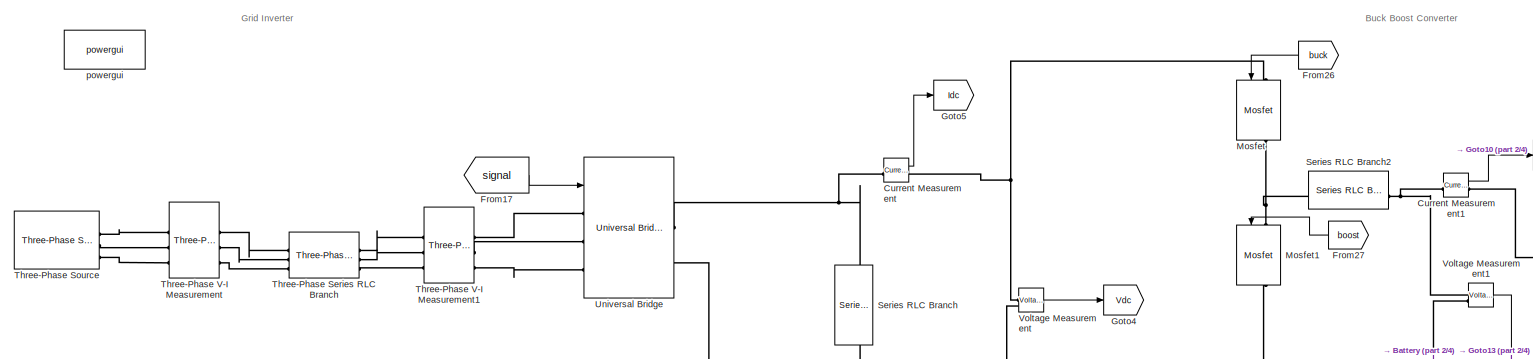
[diagram: root canvas - part 1/4, top left region]
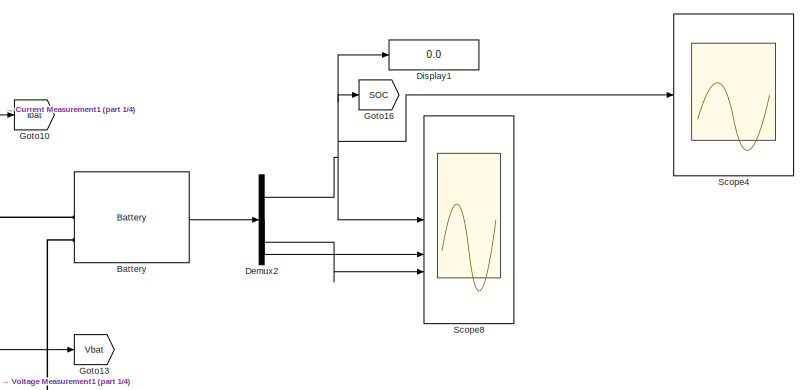
[diagram: root canvas - part 2/4, top right region]
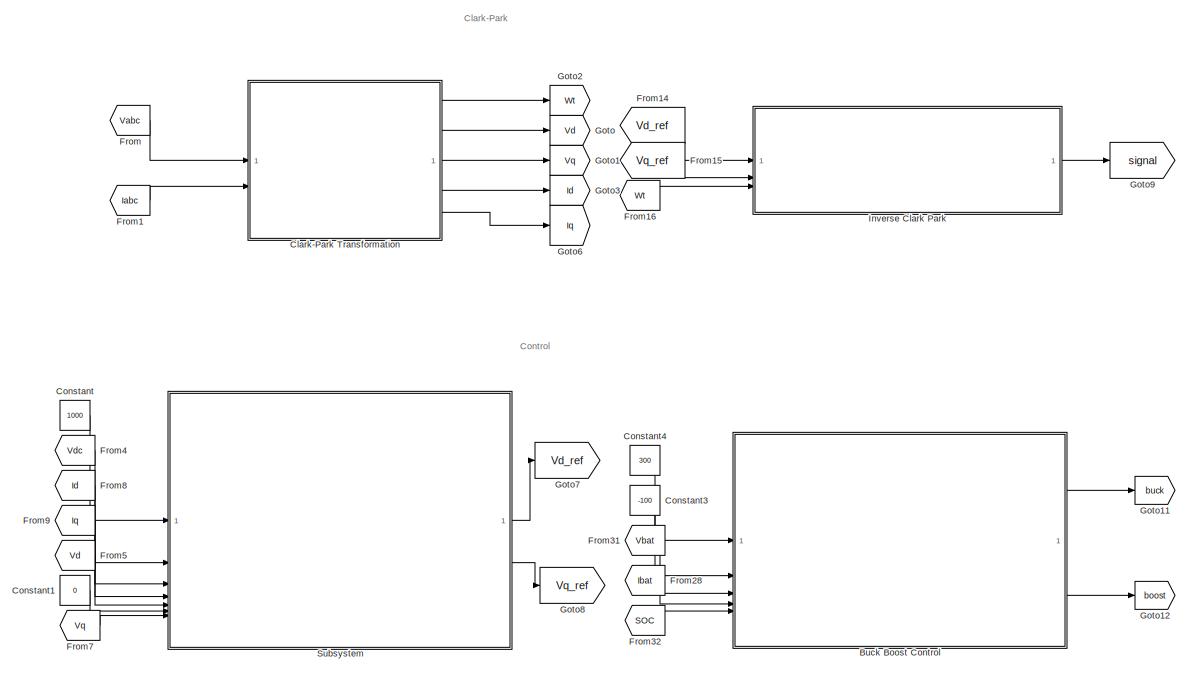
[diagram: root canvas - part 3/4, bottom left region]
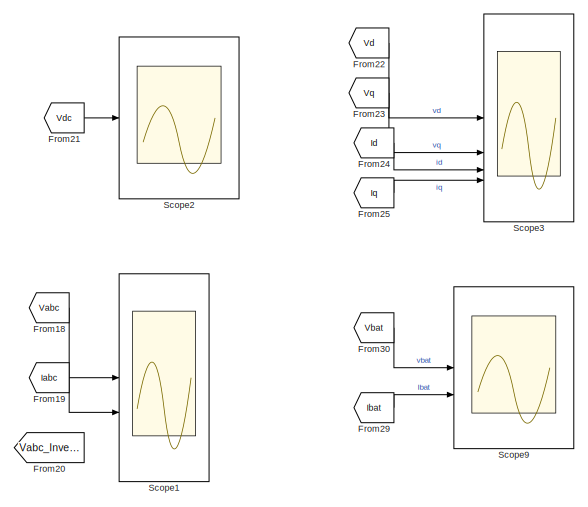
[diagram: root canvas - part 4/4, bottom right region]
MODEL slx_ea858002b065
KIND model
CONFIG AbsTol = auto
CONFIG EnableMultiTasking = off
CONFIG FixedStep = auto
CONFIG InitFcn = L=5e-3;
CONFIG MaxStep = 1e-5
CONFIG MinStep = auto
CONFIG RelTol = 1e-3
CONFIG SampleTimeConstraint = Unconstrained
CONFIG SolverName = ode23tb
CONFIG StartTime = 0.0
CONFIG StopTime = 1.4
BLOCK [Reference] Battery  REF=spsBatteryLib/Battery
  LibrarySourceBlock = sps_lib/Sources/Battery
  NameLocation = top
  SourceBlock = spsBatteryLib/Battery
  SourceType = Battery
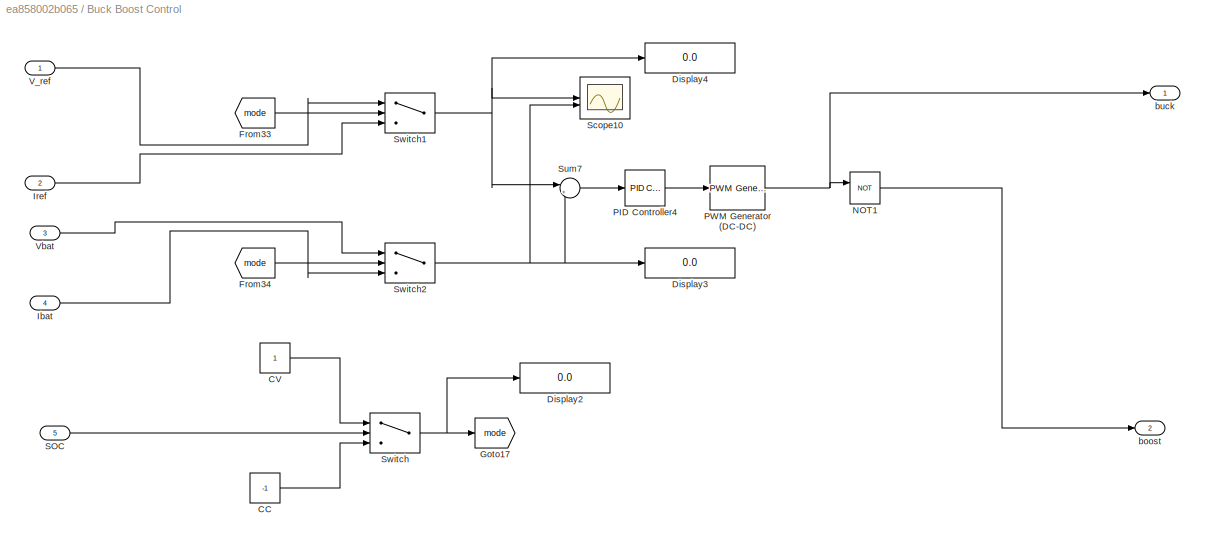
BLOCK [SubSystem] Buck Boost Control
BLOCK [Constant] Buck Boost Control/CC
  Value = -1
BLOCK [Constant] Buck Boost Control/CV
BLOCK [Display] Buck Boost Control/Display2
  Decimation = 1
BLOCK [Display] Buck Boost Control/Display3
  Decimation = 1
BLOCK [Display] Buck Boost Control/Display4
  Decimation = 1
BLOCK [From] Buck Boost Control/From33
  GotoTag = mode
BLOCK [From] Buck Boost Control/From34
  GotoTag = mode
BLOCK [Goto] Buck Boost Control/Goto17
  GotoTag = mode
BLOCK [Inport] Buck Boost Control/Ibat
  Port = 4
BLOCK [Inport] Buck Boost Control/Iref
  Port = 2
BLOCK [Logic] Buck Boost Control/NOT1
  AllPortsSameDT = off
  IconShape = distinctive
  Operator = NOT
  OutDataTypeStr = boolean
BLOCK [Reference] Buck Boost Control/PID Controller4  REF=slpidlib/PID Controller
  LibrarySourceBlock = simulink/Continuous/PID Controller
  SourceBlock = slpidlib/PID Controller
  SourceType = PID 1dof
BLOCK [Reference] Buck Boost Control/PWM Generator (DC-DC)  REF=spsPWMGeneratorDCDCLib/PWM Generator
(DC-DC)
  LibrarySourceBlock = sps_lib/Power Electronics/Power Electronics Control/PWM Generator\n(DC-DC)
  SourceBlock = spsPWMGeneratorDCDCLib/PWM Generator\n(DC-DC)
  SourceType = PWM Generator (DC-DC)
BLOCK [Inport] Buck Boost Control/SOC
  Port = 5
BLOCK [Scope] Buck Boost Control/Scope10
  Floating = off
  NumInputPorts = 2
  ScopeSpecificationString = Simulink.scopes.TimeScopeBlockCfg('CurrentConfiguration', extmgr.ConfigurationSet(extmgr.Configuration('Core','General UI',true),extmgr.Configuration('Core','Source UI',true),extmgr.Configuration('Sources','WiredSimulink',true,'DataLoggingVariableName','ScopeData1'),extmgr.Configuration('Visuals','Time Domain',true,'SerializedDisplays',{struct('MinYLimReal','-76.2053','MaxYLimReal','176.26756','YL...<+1438ch>
BLOCK [Sum] Buck Boost Control/Sum7
  Inputs = |+-
BLOCK [Switch] Buck Boost Control/Switch
  InputSameDT = off
  SaturateOnIntegerOverflow = off
  Threshold = 80
BLOCK [Switch] Buck Boost Control/Switch1
  InputSameDT = off
  SaturateOnIntegerOverflow = off
BLOCK [Switch] Buck Boost Control/Switch2
  InputSameDT = off
  SaturateOnIntegerOverflow = off
BLOCK [Inport] Buck Boost Control/V_ref
BLOCK [Inport] Buck Boost Control/Vbat
  Port = 3
BLOCK [Outport] Buck Boost Control/boost
  Port = 2
BLOCK [Outport] Buck Boost Control/buck
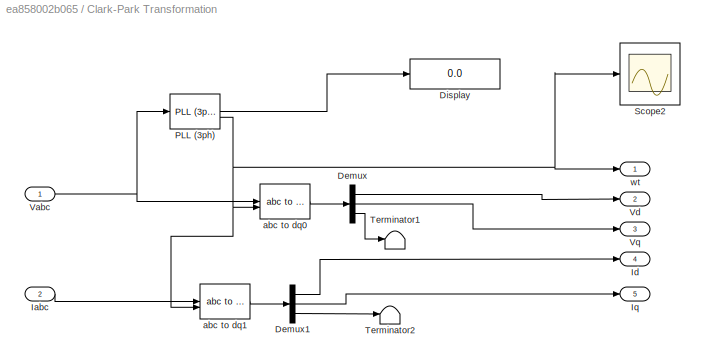
BLOCK [SubSystem] Clark-Park Transformation
BLOCK [Demux] Clark-Park Transformation/Demux
  Outputs = 3
BLOCK [Demux] Clark-Park Transformation/Demux1
  Outputs = 3
BLOCK [Display] Clark-Park Transformation/Display
  Decimation = 1
BLOCK [Inport] Clark-Park Transformation/Iabc
  Port = 2
BLOCK [Outport] Clark-Park Transformation/Id
  Port = 4
BLOCK [Outport] Clark-Park Transformation/Iq
  Port = 5
BLOCK [Reference] Clark-Park Transformation/PLL (3ph)  REF=spsPLL3phLib/PLL
(3ph)
  LibrarySourceBlock = sps_lib/Control/PLL\n(3ph)
  SourceBlock = spsPLL3phLib/PLL\n(3ph)
  SourceType = PLL (3ph)
BLOCK [Scope] Clark-Park Transformation/Scope2
  Floating = off
  NumInputPorts = 1
  ScopeSpecificationString = Simulink.scopes.TimeScopeBlockCfg('CurrentConfiguration', extmgr.ConfigurationSet(extmgr.Configuration('Core','General UI',true,'FigureColor',[1 1 1]),extmgr.Configuration('Core','Source UI',true),extmgr.Configuration('Sources','WiredSimulink',true,'DataLoggingVariableName','ScopeData2'),extmgr.Configuration('Visuals','Time Domain',true,'SerializedDisplays',{struct('MinYLimReal','-0.7854','MaxYLim...<+2475ch>
BLOCK [Terminator] Clark-Park Transformation/Terminator1
BLOCK [Terminator] Clark-Park Transformation/Terminator2
BLOCK [Inport] Clark-Park Transformation/Vabc
BLOCK [Outport] Clark-Park Transformation/Vd
  Port = 2
BLOCK [Outport] Clark-Park Transformation/Vq
  Port = 3
BLOCK [Reference] Clark-Park Transformation/abc to dq0  REF=spsabctodq0Lib/abc to dq0
  LibrarySourceBlock = sps_lib/Control/abc to dq0
  SourceBlock = spsabctodq0Lib/abc to dq0
  SourceType = abc to dq0 Transformation
BLOCK [Reference] Clark-Park Transformation/abc to dq1  REF=spsabctodq0Lib/abc to dq0
  LibrarySourceBlock = sps_lib/Control/abc to dq0
  SourceBlock = spsabctodq0Lib/abc to dq0
  SourceType = abc to dq0 Transformation
BLOCK [Outport] Clark-Park Transformation/wt
BLOCK [Constant] Constant
  Value = 1000
BLOCK [Constant] Constant1
  NameLocation = right
  Value = 0
BLOCK [Constant] Constant3
  Value = -100
BLOCK [Constant] Constant4
  Value = 300
BLOCK [Reference] Current Measurement  REF=spsCurrentMeasurementLib/Current Measurement
  LibrarySourceBlock = sps_lib/Sensors and Measurements/Current Measurement
  SourceBlock = spsCurrentMeasurementLib/Current Measurement
  SourceType = Current Measurement
  UserDataPersistent = on
BLOCK [Reference] Current Measurement1  REF=spsCurrentMeasurementLib/Current Measurement
  LibrarySourceBlock = sps_lib/Sensors and Measurements/Current Measurement
  SourceBlock = spsCurrentMeasurementLib/Current Measurement
  SourceType = Current Measurement
  UserDataPersistent = on
BLOCK [Demux] Demux2
  Outputs = 3
BLOCK [Display] Display1
  Decimation = 1
BLOCK [From] From
  GotoTag = Vabc
  TagVisibility = global
BLOCK [From] From1
  GotoTag = Iabc
  TagVisibility = global
BLOCK [From] From14
  GotoTag = Vd_ref
BLOCK [From] From15
  GotoTag = Vq_ref
BLOCK [From] From16
  GotoTag = Wt
BLOCK [From] From17
  GotoTag = signal
BLOCK [From] From18
  GotoTag = Vabc
  TagVisibility = global
BLOCK [From] From19
  GotoTag = Iabc
  TagVisibility = global
BLOCK [From] From20
  GotoTag = Vabc_Inverter
  TagVisibility = global
BLOCK [From] From21
  GotoTag = Vdc
BLOCK [From] From22
  GotoTag = Vd
BLOCK [From] From23
  GotoTag = Vq
BLOCK [From] From24
  GotoTag = Id
BLOCK [From] From25
  GotoTag = Iq
BLOCK [From] From26
  GotoTag = buck
  NameLocation = top
BLOCK [From] From27
  GotoTag = boost
  NameLocation = top
BLOCK [From] From28
  GotoTag = Ibat
BLOCK [From] From29
  GotoTag = Ibat
BLOCK [From] From30
  GotoTag = Vbat
BLOCK [From] From31
  GotoTag = Vbat
BLOCK [From] From32
  GotoTag = SOC
BLOCK [From] From4
  GotoTag = Vdc
BLOCK [From] From5
  GotoTag = Vd
BLOCK [From] From7
  GotoTag = Vq
BLOCK [From] From8
  GotoTag = Id
BLOCK [From] From9
  GotoTag = Iq
BLOCK [Goto] Goto
  GotoTag = Vd
BLOCK [Goto] Goto1
  GotoTag = Vq
BLOCK [Goto] Goto10
  GotoTag = Ibat
BLOCK [Goto] Goto11
  GotoTag = buck
  NameLocation = top
BLOCK [Goto] Goto12
  GotoTag = boost
  NameLocation = top
BLOCK [Goto] Goto13
  GotoTag = Vbat
BLOCK [Goto] Goto16
  GotoTag = SOC
BLOCK [Goto] Goto2
  GotoTag = Wt
BLOCK [Goto] Goto3
  GotoTag = Id
BLOCK [Goto] Goto4
  GotoTag = Vdc
BLOCK [Goto] Goto5
  GotoTag = Idc
BLOCK [Goto] Goto6
  GotoTag = Iq
BLOCK [Goto] Goto7
  GotoTag = Vd_ref
BLOCK [Goto] Goto8
  GotoTag = Vq_ref
BLOCK [Goto] Goto9
  GotoTag = signal
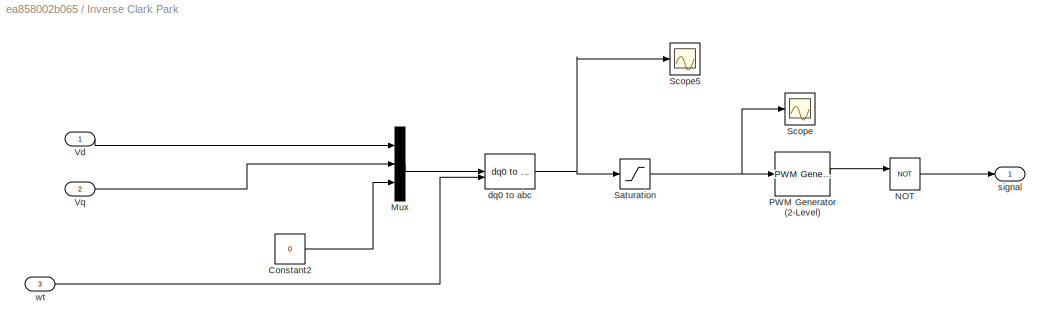
BLOCK [SubSystem] Inverse Clark Park
BLOCK [Constant] Inverse Clark Park/Constant2
  Value = 0
BLOCK [Mux] Inverse Clark Park/Mux
  DisplayOption = bar
  Inputs = 3
BLOCK [Logic] Inverse Clark Park/NOT
  AllPortsSameDT = off
  IconShape = distinctive
  Operator = NOT
  OutDataTypeStr = boolean
BLOCK [Reference] Inverse Clark Park/PWM Generator (2-Level)  REF=spsPWMGenerator2LevelLib/PWM Generator
(2-Level)
  LibrarySourceBlock = sps_lib/Power Electronics/Power Electronics Control/PWM Generator\n(2-Level)
  SourceBlock = spsPWMGenerator2LevelLib/PWM Generator\n(2-Level)
  SourceType = PWM Generator (2-Level)
BLOCK [Saturate] Inverse Clark Park/Saturation
  LowerLimit = -2
  UpperLimit = 2
BLOCK [Scope] Inverse Clark Park/Scope
  Floating = off
  NumInputPorts = 1
  ScopeSpecificationString = Simulink.scopes.TimeScopeBlockCfg('CurrentConfiguration', extmgr.ConfigurationSet(extmgr.Configuration('Core','General UI',true,'FigureColor',[1 1 1]),extmgr.Configuration('Core','Source UI',true),extmgr.Configuration('Sources','WiredSimulink',true),extmgr.Configuration('Visuals','Time Domain',true,'SerializedDisplays',{struct('MinYLimReal','-2.5','MaxYLimReal','2.5','YLabelReal','','MinYLimMag','...<+2252ch>
BLOCK [Scope] Inverse Clark Park/Scope5
  Floating = off
  NumInputPorts = 1
  ScopeSpecificationString = Simulink.scopes.TimeScopeBlockCfg('CurrentConfiguration', extmgr.ConfigurationSet(extmgr.Configuration('Core','General UI',true,'FigureColor',[1 1 1]),extmgr.Configuration('Core','Source UI',true),extmgr.Configuration('Sources','WiredSimulink',true,'DataLoggingVariableName','ScopeData5'),extmgr.Configuration('Visuals','Time Domain',true,'SerializedDisplays',{struct('MinYLimReal','-580.09013','MaxY...<+2329ch>
BLOCK [Inport] Inverse Clark Park/Vd
BLOCK [Inport] Inverse Clark Park/Vq
  Port = 2
BLOCK [Reference] Inverse Clark Park/dq0 to abc  REF=spsdq0toabcLib/dq0 to abc
  LibrarySourceBlock = sps_lib/Control/dq0 to abc
  SourceBlock = spsdq0toabcLib/dq0 to abc
  SourceType = dq0 to abc Transformation
BLOCK [Outport] Inverse Clark Park/signal
BLOCK [Inport] Inverse Clark Park/wt
  Port = 3
BLOCK [Reference] Mosfet  REF=spsMosfetLib/Mosfet
  LibrarySourceBlock = sps_lib/Power Electronics/Mosfet
  NameLocation = left
  SourceBlock = spsMosfetLib/Mosfet
  SourceType = Mosfet
BLOCK [Reference] Mosfet1  REF=spsMosfetLib/Mosfet
  LibrarySourceBlock = sps_lib/Power Electronics/Mosfet
  NameLocation = left
  SourceBlock = spsMosfetLib/Mosfet
  SourceType = Mosfet
BLOCK [Scope] Scope1
  Floating = off
  NumInputPorts = 3
  ScopeSpecificationString = Simulink.scopes.TimeScopeBlockCfg('CurrentConfiguration', extmgr.ConfigurationSet(extmgr.Configuration('Core','General UI',true,'FigureColor',[1 1 1]),extmgr.Configuration('Core','Source UI',true),extmgr.Configuration('Sources','WiredSimulink',true,'DataLoggingVariableName','ScopeData1'),extmgr.Configuration('Visuals','Time Domain',true,'SerializedDisplays',{struct('MinYLimReal','-387.83588','MaxY...<+3596ch>
BLOCK [Scope] Scope2
  Floating = off
  NumInputPorts = 1
  ScopeSpecificationString = Simulink.scopes.TimeScopeBlockCfg('CurrentConfiguration', extmgr.ConfigurationSet(extmgr.Configuration('Core','General UI',true,'FigureColor',[1 1 1]),extmgr.Configuration('Core','Source UI',true),extmgr.Configuration('Sources','WiredSimulink',true,'DataLoggingVariableName','ScopeData1'),extmgr.Configuration('Visuals','Time Domain',true,'SerializedDisplays',{struct('MinYLimReal','774.53824','MaxYL...<+2503ch>
BLOCK [Scope] Scope3
  Floating = off
  NumInputPorts = 4
  ScopeSpecificationString = Simulink.scopes.TimeScopeBlockCfg('CurrentConfiguration', extmgr.ConfigurationSet(extmgr.Configuration('Core','General UI',true,'FigureColor',[1 1 1]),extmgr.Configuration('Core','Source UI',true),extmgr.Configuration('Sources','WiredSimulink',true,'DataLoggingVariableName','ScopeData1'),extmgr.Configuration('Visuals','Time Domain',true,'SerializedDisplays',{struct('MinYLimReal','310.26698','MaxYL...<+4992ch>
BLOCK [Scope] Scope4
  Floating = off
  NumInputPorts = 1
  ScopeSpecificationString = Simulink.scopes.TimeScopeBlockCfg('CurrentConfiguration', extmgr.ConfigurationSet(extmgr.Configuration('Core','General UI',true,'FigureColor',[1 1 1]),extmgr.Configuration('Core','Source UI',true),extmgr.Configuration('Sources','WiredSimulink',true,'DataLoggingVariableName','ScopeData1'),extmgr.Configuration('Visuals','Time Domain',true,'SerializedDisplays',{struct('MinYLimReal','79.70842','MaxYLi...<+2480ch>
BLOCK [Scope] Scope8
  Floating = off
  NumInputPorts = 3
  ScopeSpecificationString = Simulink.scopes.TimeScopeBlockCfg('CurrentConfiguration', extmgr.ConfigurationSet(extmgr.Configuration('Core','General UI',true,'FigureColor',[1 1 1]),extmgr.Configuration('Core','Source UI',true),extmgr.Configuration('Sources','WiredSimulink',true,'DataLoggingVariableName','ScopeData2'),extmgr.Configuration('Visuals','Time Domain',true,'SerializedDisplays',{struct('MinYLimReal','79.91629','MaxYLi...<+4250ch>
BLOCK [Scope] Scope9
  Floating = off
  NumInputPorts = 2
  ScopeSpecificationString = Simulink.scopes.TimeScopeBlockCfg('CurrentConfiguration', extmgr.ConfigurationSet(extmgr.Configuration('Core','General UI',true,'FigureColor',[1 1 1]),extmgr.Configuration('Core','Source UI',true),extmgr.Configuration('Sources','WiredSimulink',true,'DataLoggingVariableName','ScopeData3'),extmgr.Configuration('Visuals','Time Domain',true,'SerializedDisplays',{struct('MinYLimReal','288.62828','MaxYL...<+3165ch>
BLOCK [Reference] Series RLC Branch  REF=spsSeriesRLCBranchLib/Series RLC Branch
  LibrarySourceBlock = sps_lib/Passives/Series RLC Branch
  NameLocation = left
  SourceBlock = spsSeriesRLCBranchLib/Series RLC Branch
  SourceType = Series RLC Branch
BLOCK [Reference] Series RLC Branch2  REF=spsSeriesRLCBranchLib/Series RLC Branch
  LibrarySourceBlock = sps_lib/Passives/Series RLC Branch
  SourceBlock = spsSeriesRLCBranchLib/Series RLC Branch
  SourceType = Series RLC Branch
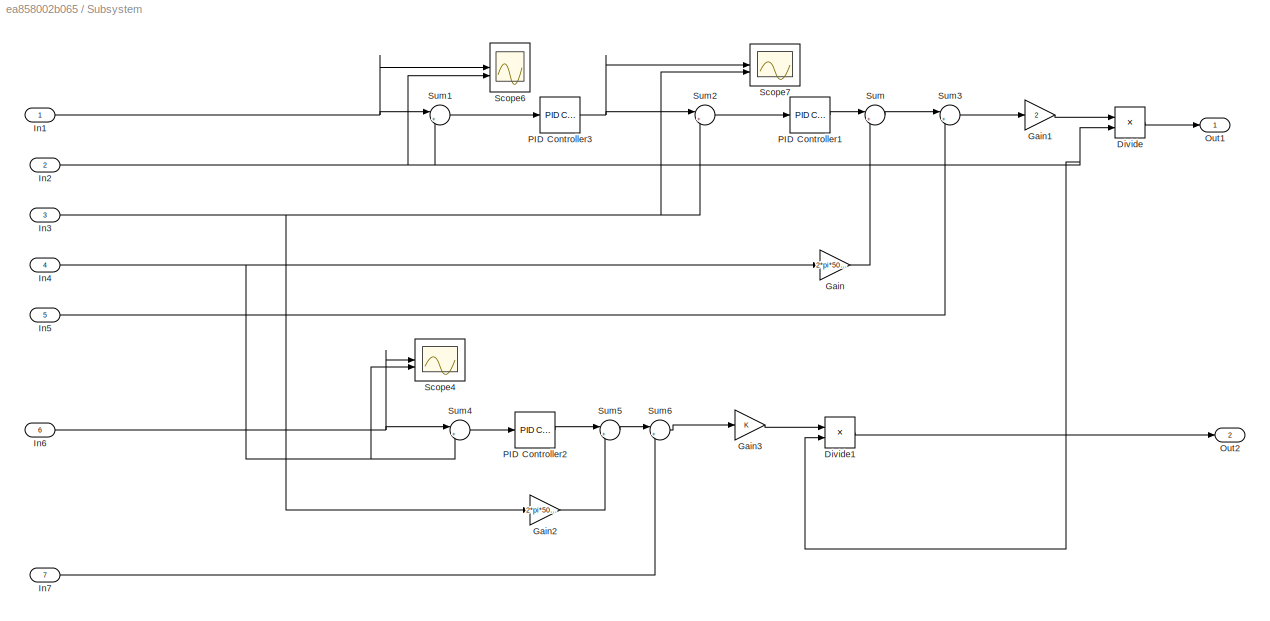
BLOCK [SubSystem] Subsystem
BLOCK [Product] Subsystem/Divide
  Inputs = */
BLOCK [Product] Subsystem/Divide1
  Inputs = */
BLOCK [Gain] Subsystem/Gain
  Gain = 2*pi*50*L
BLOCK [Gain] Subsystem/Gain1
  Gain = 2
BLOCK [Gain] Subsystem/Gain2
  Gain = 2*pi*50*L
BLOCK [Gain] Subsystem/Gain3
BLOCK [Inport] Subsystem/In1
BLOCK [Inport] Subsystem/In2
  Port = 2
BLOCK [Inport] Subsystem/In3
  Port = 3
BLOCK [Inport] Subsystem/In4
  Port = 4
BLOCK [Inport] Subsystem/In5
  Port = 5
BLOCK [Inport] Subsystem/In6
  Port = 6
BLOCK [Inport] Subsystem/In7
  Port = 7
BLOCK [Outport] Subsystem/Out1
BLOCK [Outport] Subsystem/Out2
  Port = 2
BLOCK [Reference] Subsystem/PID Controller1  REF=slpidlib/PID Controller
  LibrarySourceBlock = simulink/Continuous/PID Controller
  SourceBlock = slpidlib/PID Controller
  SourceType = PID 1dof
BLOCK [Reference] Subsystem/PID Controller2  REF=slpidlib/PID Controller
  LibrarySourceBlock = simulink/Continuous/PID Controller
  SourceBlock = slpidlib/PID Controller
  SourceType = PID 1dof
BLOCK [Reference] Subsystem/PID Controller3  REF=slpidlib/PID Controller
  LibrarySourceBlock = simulink/Continuous/PID Controller
  SourceBlock = slpidlib/PID Controller
  SourceType = PID 1dof
BLOCK [Scope] Subsystem/Scope4
  Floating = off
  NumInputPorts = 2
  ScopeSpecificationString = Simulink.scopes.TimeScopeBlockCfg('CurrentConfiguration', extmgr.ConfigurationSet(extmgr.Configuration('Core','General UI',true),extmgr.Configuration('Core','Source UI',true),extmgr.Configuration('Sources','WiredSimulink',true,'DataLoggingVariableName','ScopeData4'),extmgr.Configuration('Visuals','Time Domain',true,'SerializedDisplays',{struct('MinYLimReal','-4.05159','MaxYLimReal','9.77605','YLab...<+1423ch>
BLOCK [Scope] Subsystem/Scope6
  Floating = off
  NumInputPorts = 2
  ScopeSpecificationString = Simulink.scopes.TimeScopeBlockCfg('CurrentConfiguration', extmgr.ConfigurationSet(extmgr.Configuration('Core','General UI',true),extmgr.Configuration('Core','Source UI',true),extmgr.Configuration('Sources','WiredSimulink',true,'DataLoggingVariableName','ScopeData6'),extmgr.Configuration('Visuals','Time Domain',true,'SerializedDisplays',{struct('MinYLimReal','960.39112','MaxYLimReal','1175.68547','...<+1582ch>
BLOCK [Scope] Subsystem/Scope7
  Floating = off
  NumInputPorts = 2
  ScopeSpecificationString = Simulink.scopes.TimeScopeBlockCfg('CurrentConfiguration', extmgr.ConfigurationSet(extmgr.Configuration('Core','General UI',true),extmgr.Configuration('Core','Source UI',true),extmgr.Configuration('Sources','WiredSimulink',true,'DataLoggingVariableName','ScopeData7'),extmgr.Configuration('Visuals','Time Domain',true,'SerializedDisplays',{struct('MinYLimReal','-268.95739','MaxYLimReal','246.27904','...<+1459ch>
BLOCK [Sum] Subsystem/Sum
  Inputs = |++
BLOCK [Sum] Subsystem/Sum1
  Inputs = |+-
BLOCK [Sum] Subsystem/Sum2
  Inputs = |+-
BLOCK [Sum] Subsystem/Sum3
  Inputs = |++
BLOCK [Sum] Subsystem/Sum4
  Inputs = |+-
BLOCK [Sum] Subsystem/Sum5
  Inputs = |+-
BLOCK [Sum] Subsystem/Sum6
  Inputs = |++
BLOCK [Reference] Three-Phase Series RLC Branch  REF=spsThreePhaseSeriesRLCBranchLib/Three-Phase
Series RLC Branch
  AttributesFormatString = \n
  LibrarySourceBlock = sps_lib/Passives/Three-Phase\nSeries RLC Branch
  SourceBlock = spsThreePhaseSeriesRLCBranchLib/Three-Phase\nSeries RLC Branch
  SourceType = Three-Phase Series RLC Branch
BLOCK [Reference] Three-Phase Source  REF=spsThreePhaseSourceLib/Three-Phase Source
  LibrarySourceBlock = sps_lib/Sources/Three-Phase Source
  SourceBlock = spsThreePhaseSourceLib/Three-Phase Source
  SourceType = Three-Phase Source
BLOCK [Reference] Three-Phase V-I Measurement  REF=spsThreePhaseVIMeasurementLib/Three-Phase
V-I Measurement
  LibrarySourceBlock = sps_lib/Sensors and Measurements/Three-Phase\nV-I Measurement
  SourceBlock = spsThreePhaseVIMeasurementLib/Three-Phase\nV-I Measurement
  SourceType = Three-Phase VI Measurement
BLOCK [Reference] Three-Phase V-I Measurement1  REF=spsThreePhaseVIMeasurementLib/Three-Phase
V-I Measurement
  LibrarySourceBlock = sps_lib/Sensors and Measurements/Three-Phase\nV-I Measurement
  SourceBlock = spsThreePhaseVIMeasurementLib/Three-Phase\nV-I Measurement
  SourceType = Three-Phase VI Measurement
BLOCK [Reference] Universal Bridge  REF=spsUniversalBridgeLib/Universal Bridge
  LibrarySourceBlock = sps_lib/Power Electronics/Universal Bridge
  SourceBlock = spsUniversalBridgeLib/Universal Bridge
  SourceType = Universal Bridge
BLOCK [Reference] Voltage Measurement  REF=spsVoltageMeasurementLib/Voltage Measurement
  LibrarySourceBlock = sps_lib/Sensors and Measurements/Voltage Measurement
  SourceBlock = spsVoltageMeasurementLib/Voltage Measurement
  SourceType = Voltage Measurement
  UserDataPersistent = on
BLOCK [Reference] Voltage Measurement1  REF=spsVoltageMeasurementLib/Voltage Measurement
  LibrarySourceBlock = sps_lib/Sensors and Measurements/Voltage Measurement
  SourceBlock = spsVoltageMeasurementLib/Voltage Measurement
  SourceType = Voltage Measurement
  UserDataPersistent = on
BLOCK [Reference] powergui  REF=sps_lib/powergui
  Priority = 1
  SourceBlock = sps_lib/powergui
  SourceType = PSB option menu block
ANNOTATION (root): Buck Boost Converter
ANNOTATION (root): Clark-Park
ANNOTATION (root): Control
ANNOTATION (root): Grid Inverter
LINE Battery:1 -> Demux2:1
LINE Buck Boost Control/CC:1 -> Buck Boost Control/Switch:3
LINE Buck Boost Control/CV:1 -> Buck Boost Control/Switch:1
LINE Buck Boost Control/From33:1 -> Buck Boost Control/Switch1:2
LINE Buck Boost Control/From34:1 -> Buck Boost Control/Switch2:2
LINE Buck Boost Control/Ibat:1 -> Buck Boost Control/Switch2:3
LINE Buck Boost Control/Iref:1 -> Buck Boost Control/Switch1:3
LINE Buck Boost Control/NOT1:1 -> Buck Boost Control/boost:1
LINE Buck Boost Control/PID Controller4:1 -> Buck Boost Control/PWM Generator (DC-DC):1
NET Buck Boost Control/PWM Generator (DC-DC):1 -> Buck Boost Control/NOT1:1, Buck Boost Control/buck:1
LINE Buck Boost Control/SOC:1 -> Buck Boost Control/Switch:2
LINE Buck Boost Control/Sum7:1 -> Buck Boost Control/PID Controller4:1
NET Buck Boost Control/Switch1:1 -> Buck Boost Control/Display4:1, Buck Boost Control/Scope10:1, Buck Boost Control/Sum7:1
NET Buck Boost Control/Switch2:1 -> Buck Boost Control/Display3:1, Buck Boost Control/Scope10:2, Buck Boost Control/Sum7:2
NET Buck Boost Control/Switch:1 -> Buck Boost Control/Display2:1, Buck Boost Control/Goto17:1
LINE Buck Boost Control/V_ref:1 -> Buck Boost Control/Switch1:1
LINE Buck Boost Control/Vbat:1 -> Buck Boost Control/Switch2:1
LINE Buck Boost Control:1 -> Goto11:1
LINE Buck Boost Control:2 -> Goto12:1
LINE Clark-Park Transformation/Demux1:1 -> Clark-Park Transformation/Id:1
LINE Clark-Park Transformation/Demux1:2 -> Clark-Park Transformation/Iq:1
LINE Clark-Park Transformation/Demux1:3 -> Clark-Park Transformation/Terminator2:1
LINE Clark-Park Transformation/Demux:1 -> Clark-Park Transformation/Vd:1
LINE Clark-Park Transformation/Demux:2 -> Clark-Park Transformation/Vq:1
LINE Clark-Park Transformation/Demux:3 -> Clark-Park Transformation/Terminator1:1
LINE Clark-Park Transformation/Iabc:1 -> Clark-Park Transformation/abc to dq1:1
LINE Clark-Park Transformation/PLL (3ph):1 -> Clark-Park Transformation/Display:1
NET Clark-Park Transformation/PLL (3ph):2 -> Clark-Park Transformation/Scope2:1, Clark-Park Transformation/abc to dq0:2, Clark-Park Transformation/abc to dq1:2, Clark-Park Transformation/wt:1
NET Clark-Park Transformation/Vabc:1 -> Clark-Park Transformation/PLL (3ph):1, Clark-Park Transformation/abc to dq0:1
LINE Clark-Park Transformation/abc to dq0:1 -> Clark-Park Transformation/Demux:1
LINE Clark-Park Transformation/abc to dq1:1 -> Clark-Park Transformation/Demux1:1
LINE Clark-Park Transformation:1 -> Goto2:1
LINE Clark-Park Transformation:2 -> Goto:1
LINE Clark-Park Transformation:3 -> Goto1:1
LINE Clark-Park Transformation:4 -> Goto3:1
LINE Clark-Park Transformation:5 -> Goto6:1
LINE Constant1:1 -> Subsystem:6
LINE Constant3:1 -> Buck Boost Control:2
LINE Constant4:1 -> Buck Boost Control:1
LINE Constant:1 -> Subsystem:1
LINE Current Measurement1:1 -> Goto10:1
LINE Current Measurement:1 -> Goto5:1
NET Demux2:1 -> Display1:1, Goto16:1, Scope4:1, Scope8:1
LINE Demux2:2 -> Scope8:2
LINE Demux2:3 -> Scope8:3
LINE From14:1 -> Inverse Clark Park:1
LINE From15:1 -> Inverse Clark Park:2
LINE From16:1 -> Inverse Clark Park:3
LINE From17:1 -> Universal Bridge:1
LINE From18:1 -> Scope1:1
LINE From19:1 -> Scope1:2
LINE From1:1 -> Clark-Park Transformation:2
LINE From21:1 -> Scope2:1
LINE From22:1 -> Scope3:1
LINE From23:1 -> Scope3:2
LINE From24:1 -> Scope3:3
LINE From25:1 -> Scope3:4
LINE From26:1 -> Mosfet:1
LINE From27:1 -> Mosfet1:1
LINE From28:1 -> Buck Boost Control:4
LINE From29:1 -> Scope9:2
LINE From30:1 -> Scope9:1
LINE From31:1 -> Buck Boost Control:3
LINE From32:1 -> Buck Boost Control:5
LINE From4:1 -> Subsystem:2
LINE From5:1 -> Subsystem:5
LINE From7:1 -> Subsystem:7
LINE From8:1 -> Subsystem:3
LINE From9:1 -> Subsystem:4
LINE From:1 -> Clark-Park Transformation:1
LINE Inverse Clark Park/Constant2:1 -> Inverse Clark Park/Mux:3
LINE Inverse Clark Park/Mux:1 -> Inverse Clark Park/dq0 to abc:1
LINE Inverse Clark Park/NOT:1 -> Inverse Clark Park/signal:1
LINE Inverse Clark Park/PWM Generator (2-Level):1 -> Inverse Clark Park/NOT:1
NET Inverse Clark Park/Saturation:1 -> Inverse Clark Park/PWM Generator (2-Level):1, Inverse Clark Park/Scope:1
LINE Inverse Clark Park/Vd:1 -> Inverse Clark Park/Mux:1
LINE Inverse Clark Park/Vq:1 -> Inverse Clark Park/Mux:2
NET Inverse Clark Park/dq0 to abc:1 -> Inverse Clark Park/Saturation:1, Inverse Clark Park/Scope5:1
LINE Inverse Clark Park/wt:1 -> Inverse Clark Park/dq0 to abc:2
LINE Inverse Clark Park:1 -> Goto9:1
LINE Subsystem/Divide1:1 -> Subsystem/Out2:1
LINE Subsystem/Divide:1 -> Subsystem/Out1:1
LINE Subsystem/Gain1:1 -> Subsystem/Divide:1
LINE Subsystem/Gain2:1 -> Subsystem/Sum5:2
LINE Subsystem/Gain3:1 -> Subsystem/Divide1:1
LINE Subsystem/Gain:1 -> Subsystem/Sum:2
NET Subsystem/In1:1 -> Subsystem/Scope6:1, Subsystem/Sum1:1
NET Subsystem/In2:1 -> Subsystem/Divide1:2, Subsystem/Divide:2, Subsystem/Scope6:2, Subsystem/Sum1:2
NET Subsystem/In3:1 -> Subsystem/Gain2:1, Subsystem/Scope7:2, Subsystem/Sum2:2
NET Subsystem/In4:1 -> Subsystem/Gain:1, Subsystem/Scope4:2, Subsystem/Sum4:2
LINE Subsystem/In5:1 -> Subsystem/Sum3:2
NET Subsystem/In6:1 -> Subsystem/Scope4:1, Subsystem/Sum4:1
LINE Subsystem/In7:1 -> Subsystem/Sum6:2
LINE Subsystem/PID Controller1:1 -> Subsystem/Sum:1
LINE Subsystem/PID Controller2:1 -> Subsystem/Sum5:1
NET Subsystem/PID Controller3:1 -> Subsystem/Scope7:1, Subsystem/Sum2:1
LINE Subsystem/Sum1:1 -> Subsystem/PID Controller3:1
LINE Subsystem/Sum2:1 -> Subsystem/PID Controller1:1
LINE Subsystem/Sum3:1 -> Subsystem/Gain1:1
LINE Subsystem/Sum4:1 -> Subsystem/PID Controller2:1
LINE Subsystem/Sum5:1 -> Subsystem/Sum6:1
LINE Subsystem/Sum6:1 -> Subsystem/Gain3:1
LINE Subsystem/Sum:1 -> Subsystem/Sum3:1
LINE Subsystem:1 -> Goto7:1
LINE Subsystem:2 -> Goto8:1
LINE Voltage Measurement1:1 -> Goto13:1
LINE Voltage Measurement:1 -> Goto4:1
PLINE Battery:LConn1 -- Current Measurement1:RConn1
PNET net1: Battery:LConn2 -- Mosfet1:RConn1 -- Series RLC Branch:RConn1 -- Universal Bridge:RConn2 -- Voltage Measurement1:LConn2 -- Voltage Measurement:LConn2
PNET net2: Current Measurement1:LConn1 -- Series RLC Branch2:RConn1 -- Voltage Measurement1:LConn1
PNET net3: Current Measurement:LConn1 -- Series RLC Branch:LConn1 -- Universal Bridge:RConn1
PNET net4: Current Measurement:RConn1 -- Mosfet:LConn1 -- Voltage Measurement:LConn1
PNET net5: Mosfet1:LConn1 -- Mosfet:RConn1 -- Series RLC Branch2:LConn1
PLINE Three-Phase Series RLC Branch:LConn1 -- Three-Phase V-I Measurement:RConn1
PLINE Three-Phase Series RLC Branch:LConn2 -- Three-Phase V-I Measurement:RConn2
PLINE Three-Phase Series RLC Branch:LConn3 -- Three-Phase V-I Measurement:RConn3
PLINE Three-Phase Series RLC Branch:RConn1 -- Three-Phase V-I Measurement1:LConn1
PLINE Three-Phase Series RLC Branch:RConn2 -- Three-Phase V-I Measurement1:LConn2
PLINE Three-Phase Series RLC Branch:RConn3 -- Three-Phase V-I Measurement1:LConn3
PLINE Three-Phase Source:RConn1 -- Three-Phase V-I Measurement:LConn1
PLINE Three-Phase Source:RConn2 -- Three-Phase V-I Measurement:LConn2
PLINE Three-Phase Source:RConn3 -- Three-Phase V-I Measurement:LConn3
PLINE Three-Phase V-I Measurement1:RConn1 -- Universal Bridge:LConn1
PLINE Three-Phase V-I Measurement1:RConn2 -- Universal Bridge:LConn2
PLINE Three-Phase V-I Measurement1:RConn3 -- Universal Bridge:LConn3
note: NET lines group one-source signal fan-out (src -> all destinations, sorted); 1:1 wires keep LINE; PNET lines group multi-terminal physical nets as a canonical sorted terminal list (undirected conserving connections); 2-terminal nets keep the pairwise PLINE form
